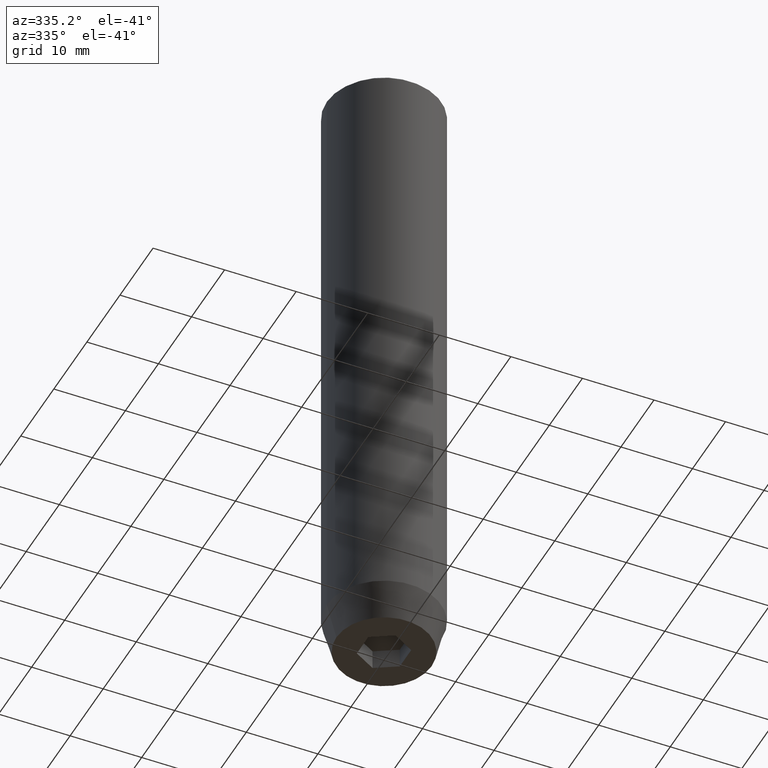
[diagram: clean part render]
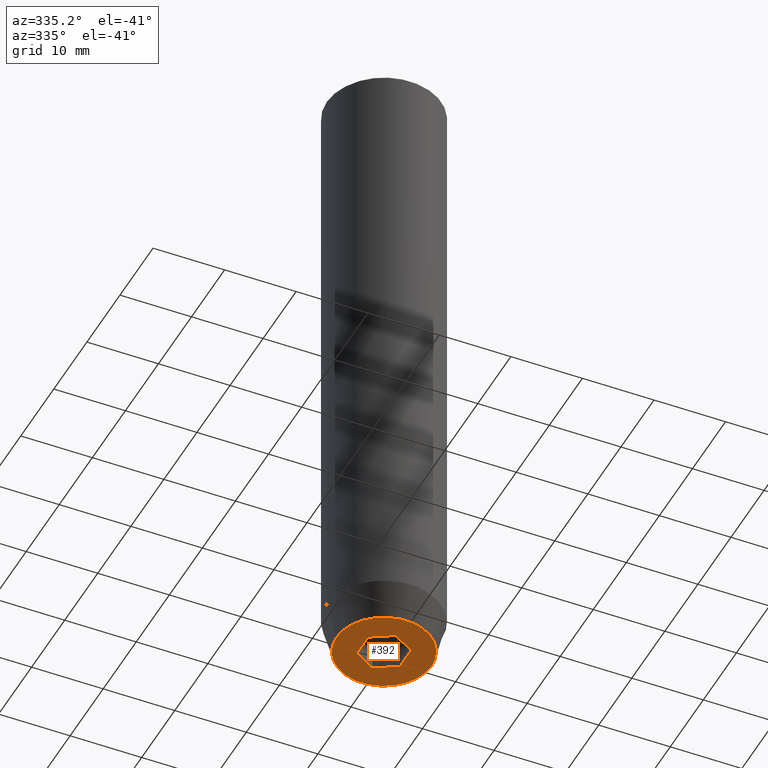
[diagram: same view with one face highlighted and labeled with its STEP entity id]
A machine part, auxiliary view. The second image highlights one B-rep face of the part: STEP entity #392.
In plain terms, the highlighted planar face has unit normal (0, 0, -1).
Its self-contained STEP definition (entity closure, byte-faithful):
#9 = EDGE_CURVE ( 'NONE', #354, #73, #356, .T. ) ;
#11 = CIRCLE ( 'NONE', #87, 6.660254037844381969 ) ;
#16 = ORIENTED_EDGE ( 'NONE', *, *, #381, .F. ) ;
#20 = ORIENTED_EDGE ( 'NONE', *, *, #512, .F. ) ;
#22 = CARTESIAN_POINT ( 'NONE',  ( -2.168404344971008868E-16, -3.464101615137754830, -90.00000000000000000 ) ) ;
#29 = EDGE_CURVE ( 'NONE', #193, #351, #276, .T. ) ;
#41 = DIRECTION ( 'NONE',  ( 0.000000000000000000, 0.000000000000000000, -1.000000000000000000 ) ) ;
#47 = CARTESIAN_POINT ( 'NONE',  ( -2.168404344971008868E-16, 3.464101615137754830, -90.00000000000000000 ) ) ;
#49 = LINE ( 'NONE', #421, #514 ) ;
#58 = ORIENTED_EDGE ( 'NONE', *, *, #134, .F. ) ;
#63 = EDGE_CURVE ( 'NONE', #124, #430, #49, .T. ) ;
#73 = VERTEX_POINT ( 'NONE', #131 ) ;
#81 = LINE ( 'NONE', #218, #102 ) ;
#82 = CARTESIAN_POINT ( 'NONE',  ( -6.660254037844381969, 8.976816591066591237E-16, -90.00000000000000000 ) ) ;
#87 = AXIS2_PLACEMENT_3D ( 'NONE', #497, #318, #260 ) ;
#102 = VECTOR ( 'NONE', #161, 1000.000000000000000 ) ;
#118 = LINE ( 'NONE', #437, #310 ) ;
#123 = DIRECTION ( 'NONE',  ( -2.503857664561932376E-16, 1.000000000000000000, 0.000000000000000000 ) ) ;
#124 = VERTEX_POINT ( 'NONE', #269 ) ;
#127 = FACE_OUTER_BOUND ( 'NONE', #428, .T. ) ;
#131 = CARTESIAN_POINT ( 'NONE',  ( 6.660254037844381969, 0.000000000000000000, -90.00000000000000000 ) ) ;
#134 = EDGE_CURVE ( 'NONE', #351, #343, #360, .T. ) ;
#141 = DIRECTION ( 'NONE',  ( 1.000000000000000000, 0.000000000000000000, 0.000000000000000000 ) ) ;
#146 = VERTEX_POINT ( 'NONE', #321 ) ;
#150 = EDGE_LOOP ( 'NONE', ( #284, #16, #20, #510, #534, #58 ) ) ;
#161 = DIRECTION ( 'NONE',  ( 0.000000000000000000, -1.000000000000000000, 0.000000000000000000 ) ) ;
#172 = LINE ( 'NONE', #353, #583 ) ;
#177 = AXIS2_PLACEMENT_3D ( 'NONE', #552, #416, #141 ) ;
#193 = VERTEX_POINT ( 'NONE', #568 ) ;
#199 = VECTOR ( 'NONE', #462, 999.9999999999998863 ) ;
#218 = CARTESIAN_POINT ( 'NONE',  ( 3.000000000000000000, 0.000000000000000000, -90.00000000000000000 ) ) ;
#220 = CARTESIAN_POINT ( 'NONE',  ( -1.499999999999999556, 2.598076211353316012, -90.00000000000000000 ) ) ;
#221 = DIRECTION ( 'NONE',  ( -1.000000000000000000, 0.000000000000000000, -0.000000000000000000 ) ) ;
#260 = DIRECTION ( 'NONE',  ( 1.000000000000000000, 0.000000000000000000, 0.000000000000000000 ) ) ;
#269 = CARTESIAN_POINT ( 'NONE',  ( 3.000000000000000000, -1.732050807568876527, -90.00000000000000000 ) ) ;
#276 = LINE ( 'NONE', #220, #199 ) ;
#284 = ORIENTED_EDGE ( 'NONE', *, *, #29, .F. ) ;
#310 = VECTOR ( 'NONE', #444, 1000.000000000000000 ) ;
#318 = DIRECTION ( 'NONE',  ( -0.000000000000000000, -0.000000000000000000, 1.000000000000000000 ) ) ;
#321 = CARTESIAN_POINT ( 'NONE',  ( -3.000000000000000000, -1.732050807568877859, -90.00000000000000000 ) ) ;
#343 = VERTEX_POINT ( 'NONE', #450 ) ;
#348 = ORIENTED_EDGE ( 'NONE', *, *, #9, .F. ) ;
#351 = VERTEX_POINT ( 'NONE', #47 ) ;
#353 = CARTESIAN_POINT ( 'NONE',  ( -3.000000000000000444, -7.511572993685800087E-16, -90.00000000000000000 ) ) ;
#354 = VERTEX_POINT ( 'NONE', #82 ) ;
#356 = CIRCLE ( 'NONE', #177, 6.660254037844381969 ) ;
#358 = FACE_BOUND ( 'NONE', #150, .T. ) ;
#360 = LINE ( 'NONE', #501, #491 ) ;
#366 = EDGE_CURVE ( 'NONE', #73, #354, #11, .T. ) ;
#381 = EDGE_CURVE ( 'NONE', #146, #193, #172, .T. ) ;
#392 = ADVANCED_FACE ( 'NONE', ( #358, #127 ), #495, .T. ) ;
#416 = DIRECTION ( 'NONE',  ( -0.000000000000000000, -0.000000000000000000, 1.000000000000000000 ) ) ;
#421 = CARTESIAN_POINT ( 'NONE',  ( 1.500000000000000222, -2.598076211353315568, -90.00000000000000000 ) ) ;
#428 = EDGE_LOOP ( 'NONE', ( #562, #348 ) ) ;
#430 = VERTEX_POINT ( 'NONE', #22 ) ;
#437 = CARTESIAN_POINT ( 'NONE',  ( -1.500000000000000666, -2.598076211353316456, -90.00000000000000000 ) ) ;
#444 = DIRECTION ( 'NONE',  ( -0.8660254037844385966, 0.5000000000000001110, 0.000000000000000000 ) ) ;
#450 = CARTESIAN_POINT ( 'NONE',  ( 3.000000000000000000, 1.732050807568876527, -90.00000000000000000 ) ) ;
#452 = CARTESIAN_POINT ( 'NONE',  ( 0.000000000000000000, 6.660254037844381969, -90.00000000000000000 ) ) ;
#454 = DIRECTION ( 'NONE',  ( 0.8660254037844385966, -0.5000000000000001110, 0.000000000000000000 ) ) ;
#462 = DIRECTION ( 'NONE',  ( 0.8660254037844387076, 0.4999999999999999445, 0.000000000000000000 ) ) ;
#477 = EDGE_CURVE ( 'NONE', #343, #124, #81, .T. ) ;
#491 = VECTOR ( 'NONE', #454, 1000.000000000000000 ) ;
#495 = PLANE ( 'NONE',  #499 ) ;
#497 = CARTESIAN_POINT ( 'NONE',  ( 0.000000000000000000, 0.000000000000000000, -90.00000000000000000 ) ) ;
#499 = AXIS2_PLACEMENT_3D ( 'NONE', #452, #41, #221 ) ;
#501 = CARTESIAN_POINT ( 'NONE',  ( 1.500000000000000222, 2.598076211353315568, -90.00000000000000000 ) ) ;
#510 = ORIENTED_EDGE ( 'NONE', *, *, #63, .F. ) ;
#512 = EDGE_CURVE ( 'NONE', #430, #146, #118, .T. ) ;
#514 = VECTOR ( 'NONE', #547, 1000.000000000000000 ) ;
#534 = ORIENTED_EDGE ( 'NONE', *, *, #477, .F. ) ;
#547 = DIRECTION ( 'NONE',  ( -0.8660254037844385966, -0.5000000000000001110, 0.000000000000000000 ) ) ;
#552 = CARTESIAN_POINT ( 'NONE',  ( 0.000000000000000000, 0.000000000000000000, -90.00000000000000000 ) ) ;
#562 = ORIENTED_EDGE ( 'NONE', *, *, #366, .F. ) ;
#568 = CARTESIAN_POINT ( 'NONE',  ( -3.000000000000000888, 1.732050807568876527, -90.00000000000000000 ) ) ;
#583 = VECTOR ( 'NONE', #123, 1000.000000000000000 ) ;